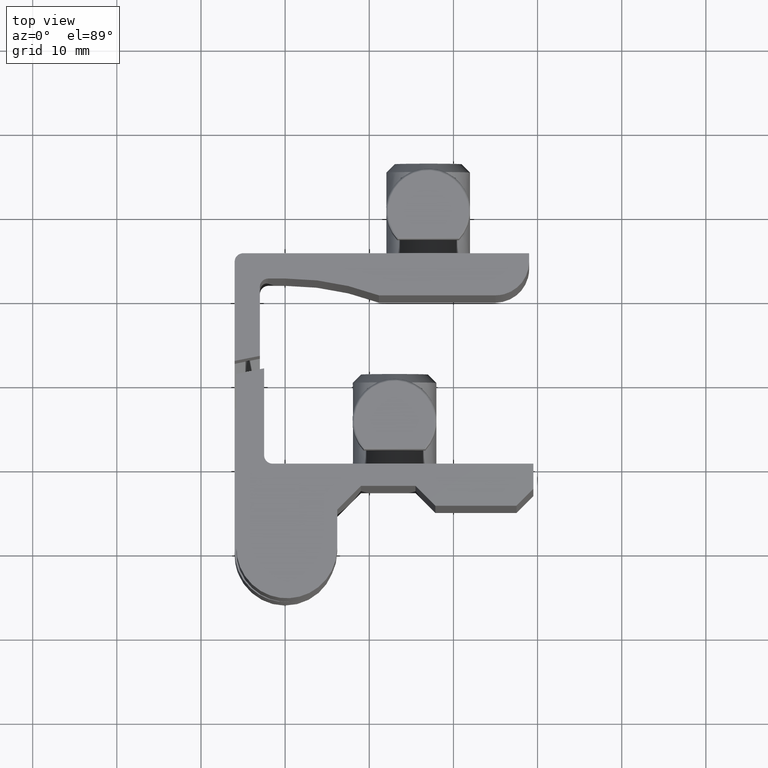
[diagram: clean part render]
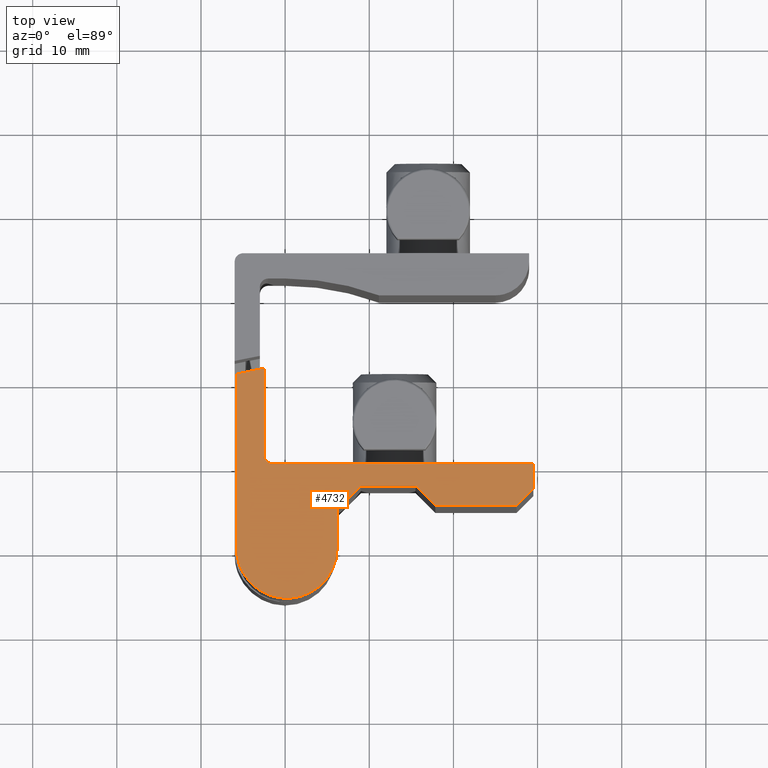
[diagram: same view with one face highlighted and labeled with its STEP entity id]
A machine part, top view. The second image highlights one B-rep face of the part: STEP entity #4732.
In plain terms, the highlighted face is a freeform B-spline surface patch.
Its self-contained STEP definition (entity closure, byte-faithful):
#4335=CARTESIAN_POINT('',(-2.500000221235725,11.000000451225700,49.900001988654402));
#4336=VERTEX_POINT('',#4335);
#4342=CARTESIAN_POINT('',(-1.500000221235725,10.000000451225700,49.900001988654402));
#4343=VERTEX_POINT('',#4342);
#4344=CARTESIAN_POINT('',(-2.500000221235725,11.000000451225700,49.900001988654402));
#4345=CARTESIAN_POINT('',(-2.500000221235724,10.000000451225700,49.900001988654395));
#4346=CARTESIAN_POINT('',(-1.500000221235725,10.000000451225700,49.900001988654402));
#4354=(BOUNDED_CURVE()B_SPLINE_CURVE(2,(#4344,#4345,#4346),.UNSPECIFIED.,.F.,.U.)CURVE()GEOMETRIC_REPRESENTATION_ITEM()QUASI_UNIFORM_CURVE()RATIONAL_B_SPLINE_CURVE((1.0,0.707106781186548,1.0))REPRESENTATION_ITEM(''));
#4355=EDGE_CURVE('',#4336,#4343,#4354,.T.);
#4624=CARTESIAN_POINT('',(31.263236976400009,-7.365123534783367,49.900001988654402));
#4625=CARTESIAN_POINT('',(-7.563236364176642,-7.365123534783367,49.900001988654402));
#4626=CARTESIAN_POINT('',(31.263236976400009,22.694914168554931,49.900001988654402));
#4627=CARTESIAN_POINT('',(-7.563236364176642,22.694914168554931,49.900001988654402));
#4628=B_SPLINE_SURFACE_WITH_KNOTS('',1,1,((#4624,#4626),(#4625,#4627)),.UNSPECIFIED.,.F.,.F.,.U.,(2,2),(2,2),(0.0,38.826473340576648),(0.0,30.060037703338299),.UNSPECIFIED.);
#4629=CARTESIAN_POINT('',(29.500001298682651,10.000000451225700,49.900001988654402));
#4630=VERTEX_POINT('',#4629);
#4631=CARTESIAN_POINT('',(29.500001298682651,7.000000308733380,49.900001988654402));
#4632=VERTEX_POINT('',#4631);
#4633=CARTESIAN_POINT('',(29.500001298682651,10.000000451225700,49.900001988654402));
#4634=CARTESIAN_POINT('',(29.500001298682651,7.000000308733380,49.900001988654402));
#4635=QUASI_UNIFORM_CURVE('',1,(#4633,#4634),.UNSPECIFIED.,.F.,.U.);
#4636=EDGE_CURVE('',#4630,#4632,#4635,.T.);
#4637=ORIENTED_EDGE('',*,*,#4636,.F.);
#4638=CARTESIAN_POINT('',(-1.500000221235725,10.000000451225700,49.900001988654402));
#4639=CARTESIAN_POINT('',(29.500001298682651,10.000000451225700,49.900001988654402));
#4640=QUASI_UNIFORM_CURVE('',1,(#4638,#4639),.UNSPECIFIED.,.F.,.U.);
#4641=EDGE_CURVE('',#4343,#4630,#4640,.T.);
#4642=ORIENTED_EDGE('',*,*,#4641,.F.);
#4643=ORIENTED_EDGE('',*,*,#4355,.F.);
#4644=CARTESIAN_POINT('',(-2.500000221235695,21.329792384840601,49.900001988654402));
#4645=VERTEX_POINT('',#4644);
#4646=CARTESIAN_POINT('',(-2.500000221235695,21.329792384840601,49.900001988654402));
#4647=CARTESIAN_POINT('',(-2.500000221235725,11.000000451225700,49.900001988654402));
#4648=QUASI_UNIFORM_CURVE('',1,(#4646,#4647),.UNSPECIFIED.,.F.,.U.);
#4649=EDGE_CURVE('',#4645,#4336,#4648,.T.);
#4650=ORIENTED_EDGE('',*,*,#4649,.F.);
#4651=CARTESIAN_POINT('',(-5.800000370852670,20.645823802685200,49.900001988654402));
#4652=VERTEX_POINT('',#4651);
#4653=CARTESIAN_POINT('',(-5.800000370852670,20.645823802685200,49.900001988654402));
#4654=CARTESIAN_POINT('',(-4.176886100571441,21.117526272751292,49.900001988654402));
#4655=CARTESIAN_POINT('',(-2.500000221235699,21.329792384840619,49.900001988654402));
#4663=(BOUNDED_CURVE()B_SPLINE_CURVE(2,(#4653,#4654,#4655),.UNSPECIFIED.,.F.,.U.)CURVE()GEOMETRIC_REPRESENTATION_ITEM()QUASI_UNIFORM_CURVE()RATIONAL_B_SPLINE_CURVE((1.0,0.996923929541586,1.0))REPRESENTATION_ITEM(''));
#4664=EDGE_CURVE('',#4652,#4645,#4663,.T.);
#4665=ORIENTED_EDGE('',*,*,#4664,.F.);
#4666=CARTESIAN_POINT('',(-5.800000370852680,-3.562343E-009,49.900001988654402));
#4667=VERTEX_POINT('',#4666);
#4668=CARTESIAN_POINT('',(-5.800000370852680,-3.562343E-009,49.900001988654402));
#4669=CARTESIAN_POINT('',(-5.800000370852670,20.645823802685200,49.900001988654402));
#4670=QUASI_UNIFORM_CURVE('',1,(#4668,#4669),.UNSPECIFIED.,.F.,.U.);
#4671=EDGE_CURVE('',#4667,#4652,#4670,.T.);
#4672=ORIENTED_EDGE('',*,*,#4671,.F.);
#4673=CARTESIAN_POINT('',(6.200000191991930,-3.562562E-009,49.900001988654402));
#4674=VERTEX_POINT('',#4673);
#4675=CARTESIAN_POINT('',(6.200000191991930,-3.562562E-009,49.900001988654402));
#4676=CARTESIAN_POINT('',(6.200000191992115,-6.000000284984740,49.900001988654410));
#4677=CARTESIAN_POINT('',(0.199999910569716,-6.000000284984742,49.900001988654402));
#4678=CARTESIAN_POINT('',(-5.800000370852684,-6.000000284984740,49.900001988654410));
#4679=CARTESIAN_POINT('',(-5.800000370852685,-3.562342E-009,49.900001988654402));
#4687=(BOUNDED_CURVE()B_SPLINE_CURVE(2,(#4675,#4676,#4677,#4678,#4679),.UNSPECIFIED.,.F.,.U.)B_SPLINE_CURVE_WITH_KNOTS((3,2,3),(0.0,0.500000000000000,1.0),.UNSPECIFIED.)CURVE()GEOMETRIC_REPRESENTATION_ITEM()RATIONAL_B_SPLINE_CURVE((1.0,0.707106781186547,1.0,0.707106781186547,1.0))REPRESENTATION_ITEM(''));
#4688=EDGE_CURVE('',#4674,#4667,#4687,.T.);
#4689=ORIENTED_EDGE('',*,*,#4688,.F.);
#4690=CARTESIAN_POINT('',(6.200000191992100,4.550000192364610,49.900001988654402));
#4691=VERTEX_POINT('',#4690);
#4692=CARTESIAN_POINT('',(6.200000191992100,4.550000192364610,49.900001988654402));
#4693=CARTESIAN_POINT('',(6.200000191991930,-3.562562E-009,49.900001988654402));
#4694=QUASI_UNIFORM_CURVE('',1,(#4692,#4693),.UNSPECIFIED.,.F.,.U.);
#4695=EDGE_CURVE('',#4691,#4674,#4694,.T.);
#4696=ORIENTED_EDGE('',*,*,#4695,.F.);
#4697=CARTESIAN_POINT('',(9.000000324984971,7.350000325357490,49.900001988654402));
#4698=VERTEX_POINT('',#4697);
#4699=CARTESIAN_POINT('',(9.000000324984971,7.350000325357490,49.900001988654402));
#4700=CARTESIAN_POINT('',(6.200000191992100,4.550000192364610,49.900001988654402));
#4701=QUASI_UNIFORM_CURVE('',1,(#4699,#4700),.UNSPECIFIED.,.F.,.U.);
#4702=EDGE_CURVE('',#4698,#4691,#4701,.T.);
#4703=ORIENTED_EDGE('',*,*,#4702,.F.);
#4704=CARTESIAN_POINT('',(15.500000633718400,7.350000325357490,49.900001988654402));
#4705=VERTEX_POINT('',#4704);
#4706=CARTESIAN_POINT('',(15.500000633718400,7.350000325357490,49.900001988654402));
#4707=CARTESIAN_POINT('',(9.000000324984971,7.350000325357490,49.900001988654402));
#4708=QUASI_UNIFORM_CURVE('',1,(#4706,#4707),.UNSPECIFIED.,.F.,.U.);
#4709=EDGE_CURVE('',#4705,#4698,#4708,.T.);
#4710=ORIENTED_EDGE('',*,*,#4709,.F.);
#4711=CARTESIAN_POINT('',(17.850000745337351,5.000000213738500,49.900001988654402));
#4712=VERTEX_POINT('',#4711);
#4713=CARTESIAN_POINT('',(17.850000745337351,5.000000213738500,49.900001988654402));
#4714=CARTESIAN_POINT('',(15.500000633718400,7.350000325357490,49.900001988654402));
#4715=QUASI_UNIFORM_CURVE('',1,(#4713,#4714),.UNSPECIFIED.,.F.,.U.);
#4716=EDGE_CURVE('',#4712,#4705,#4715,.T.);
#4717=ORIENTED_EDGE('',*,*,#4716,.F.);
#4718=CARTESIAN_POINT('',(27.500001203687798,5.000000213738500,49.900001988654402));
#4719=VERTEX_POINT('',#4718);
#4720=CARTESIAN_POINT('',(27.500001203687798,5.000000213738500,49.900001988654402));
#4721=CARTESIAN_POINT('',(17.850000745337351,5.000000213738500,49.900001988654402));
#4722=QUASI_UNIFORM_CURVE('',1,(#4720,#4721),.UNSPECIFIED.,.F.,.U.);
#4723=EDGE_CURVE('',#4719,#4712,#4722,.T.);
#4724=ORIENTED_EDGE('',*,*,#4723,.F.);
#4725=CARTESIAN_POINT('',(29.500001298682651,7.000000308733380,49.900001988654402));
#4726=CARTESIAN_POINT('',(27.500001203687798,5.000000213738500,49.900001988654402));
#4727=QUASI_UNIFORM_CURVE('',1,(#4725,#4726),.UNSPECIFIED.,.F.,.U.);
#4728=EDGE_CURVE('',#4632,#4719,#4727,.T.);
#4729=ORIENTED_EDGE('',*,*,#4728,.F.);
#4730=EDGE_LOOP('',(#4637,#4642,#4643,#4650,#4665,#4672,#4689,#4696,#4703,#4710,#4717,#4724,#4729));
#4731=FACE_OUTER_BOUND('',#4730,.T.);
#4732=ADVANCED_FACE('',(#4731),#4628,.F.);